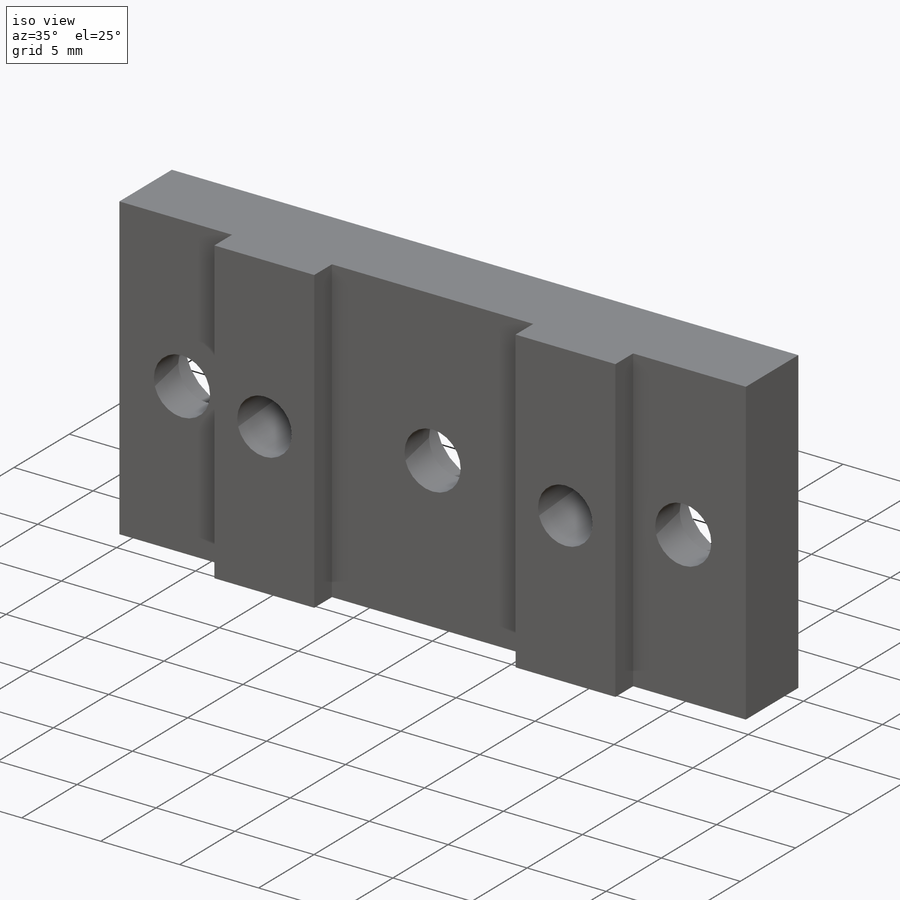
[diagram: iso view]
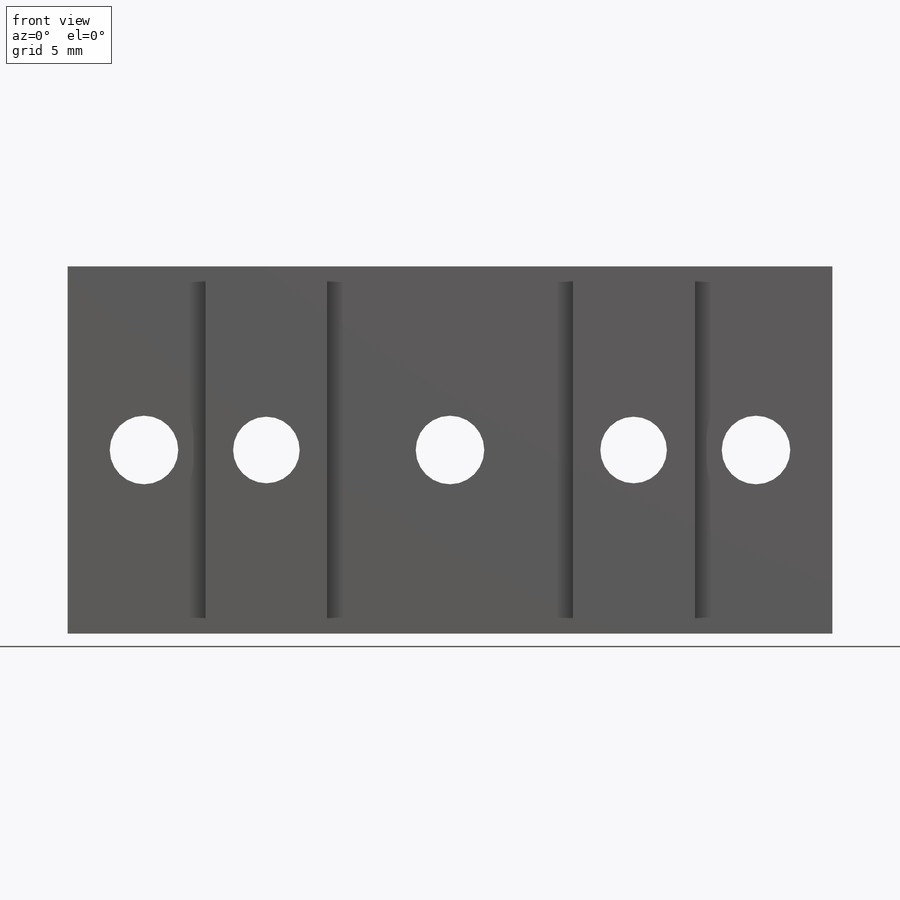
[diagram: front view]
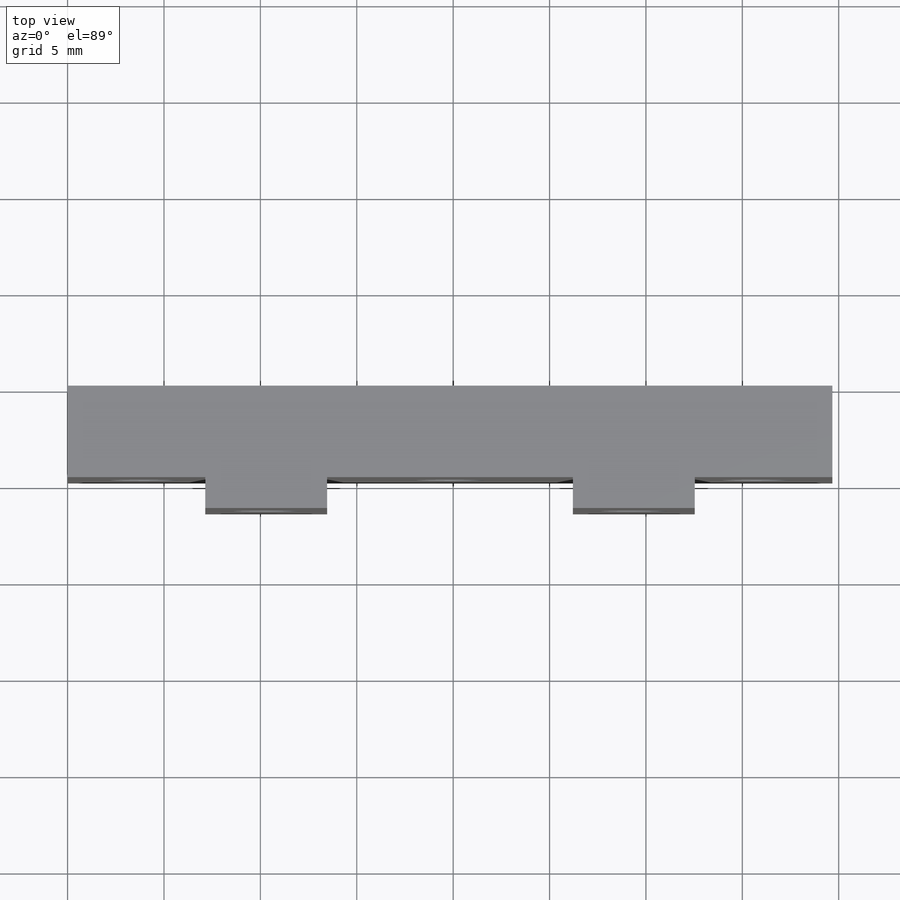
[diagram: top view]
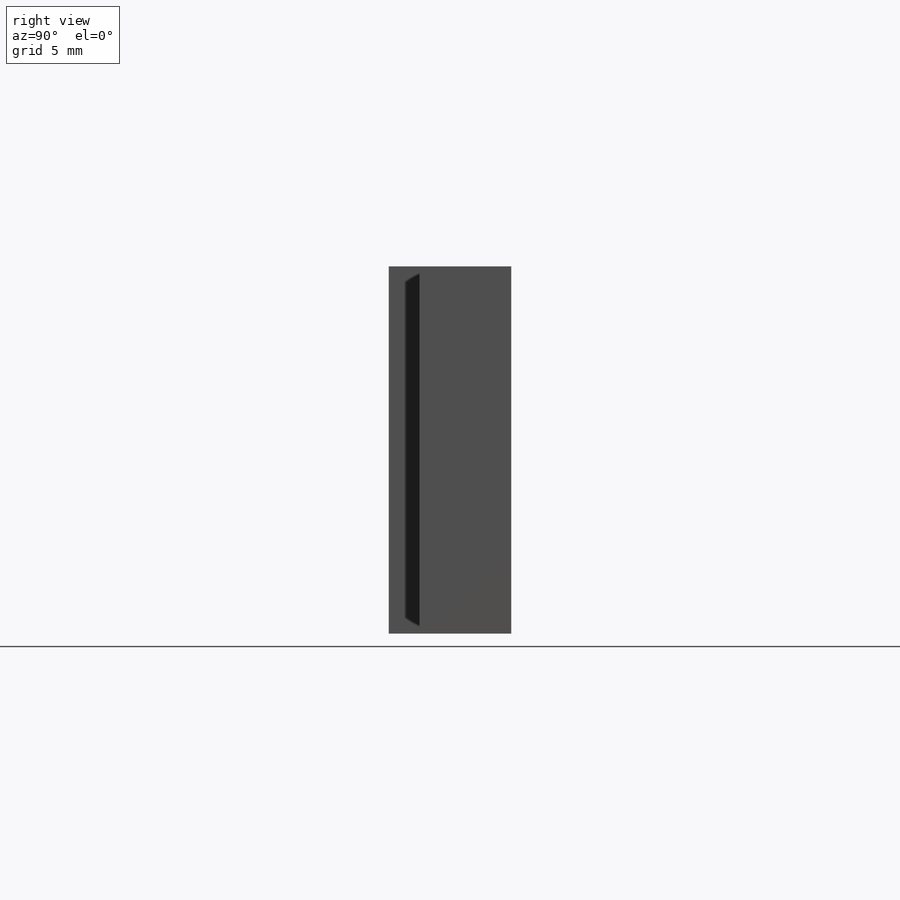
[diagram: right view]
SOLIDWORKS PART (.sldprt)
format: sldprt  version: not decoded by parser v0  size: 230,400 bytes
history: native  units: mm
features: sketch x6, hole x2, thread x2, material x1, extrude x1, cut_extrude x1 (+11 scaffold rows collapsed)
feature tree (24):
  scaffold x11  (default folders/planes/origin — collapsed)
  material  "Material <not specified>"
  sketch  "Sketch1"  dims[D1=19.05mm D2=39.6748mm]
  extrude  "Extrude1"  Depth=6.35mm
  sketch  "Sketch2"  dims[D1=1.6002mm D2=7.1374mm D3=13.462mm D4=26.2128mm D5=32.5374mm]
  cut_extrude  "Cut-Extrude1"  [1 undecoded]
  hole  "Hole1"  Diameter=3.556mm Depth=6.35mm
  sketch  "Sketch4"  dims[D1=9.525mm D2=3.9624mm D3=15.875mm D4=31.75mm]
  sketch  "Sketch5"  dims[Diameter=3.556mm Depth=6.35mm C-Bore Diameter=6.35mm C-Bore Depth=2.54mm]
  hole  "#8-32 Tapped Hole1"  Diameter=3.4544mm Depth=6.35mm
  sketch  "Sketch7"  dims[D1=9.525mm D2=10.3124mm D3=19.05mm]
  sketch  "Sketch6"  dims[hole-wizard template sketch: 60 standard entries collapsed; hole parameters kept: c18.Thru Tap Drill Depth=6.35mm]
  thread  "Hole Thread1"  Diameter=4.1656mm  [1 undecoded]
  thread  "Hole Thread2"  Diameter=4.1656mm  [1 undecoded]
decode coverage: 11 of 12 modeling features carry decoded parameters
note: ~ marks probable driven/reference dimensions
note: 3 parameter values undecoded
note: suppression state not decoded; provenance and decode notes live in map.json
